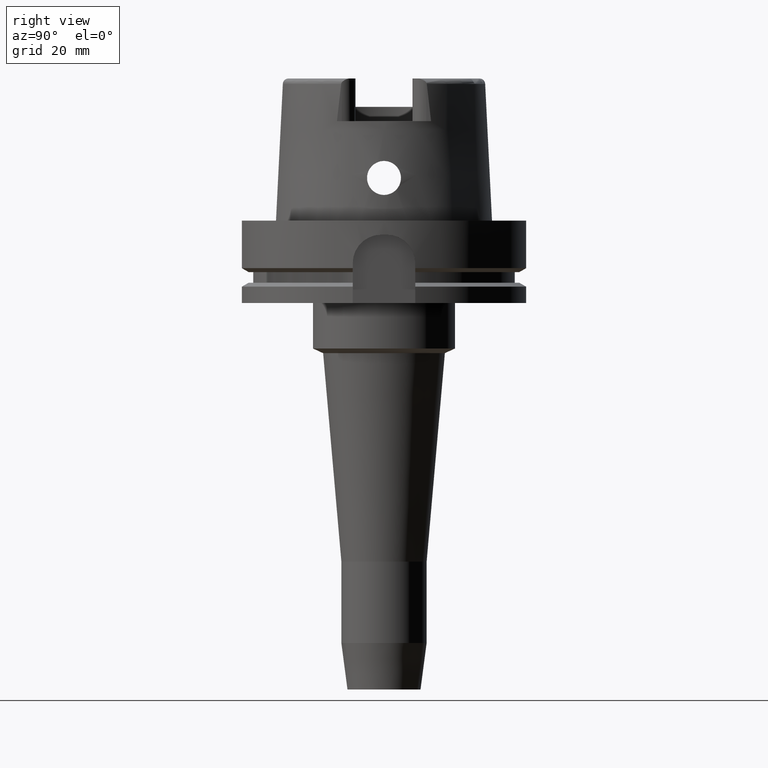
[diagram: clean part render]
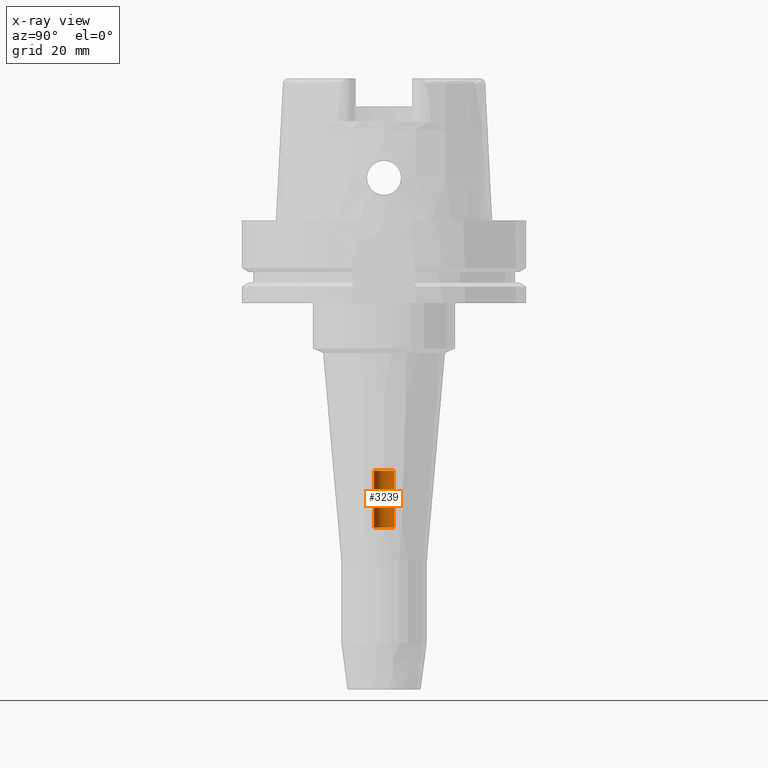
[diagram: x-ray — body ghosted, one internal face saturated and labeled with its STEP entity id]
A machine part, right view, then the same camera in x-ray: the body is ghosted and one INTERNAL B-rep face — a face not visible from any outside direction — is saturated and labeled: STEP entity #3239.
In plain terms, the highlighted cylindrical surface (edge-blend (fillet) strip) has radius 3.5 mm, axis along (0, 0, 1).
Its self-contained STEP definition (entity closure, byte-faithful):
#945=CARTESIAN_POINT('',(0.E0,0.E0,-8.8E1));
#946=DIRECTION('',(0.E0,0.E0,1.E0));
#947=DIRECTION('',(0.E0,1.E0,0.E0));
#948=AXIS2_PLACEMENT_3D('',#945,#946,#947);
#953=DIRECTION('',(0.E0,0.E0,1.E0));
#954=VECTOR('',#953,2.E1);
#955=CARTESIAN_POINT('',(0.E0,3.5E0,-1.08E2));
#956=LINE('',#955,#954);
#960=DIRECTION('',(0.E0,0.E0,1.E0));
#961=VECTOR('',#960,2.E1);
#962=CARTESIAN_POINT('',(0.E0,-3.5E0,-1.08E2));
#963=LINE('',#962,#961);
#983=CARTESIAN_POINT('',(0.E0,0.E0,-1.08E2));
#984=DIRECTION('',(0.E0,0.E0,-1.E0));
#985=DIRECTION('',(0.E0,-1.E0,0.E0));
#986=AXIS2_PLACEMENT_3D('',#983,#984,#985);
#2381=CARTESIAN_POINT('',(0.E0,-3.5E0,-8.8E1));
#2382=CARTESIAN_POINT('',(0.E0,3.5E0,-8.8E1));
#2383=VERTEX_POINT('',#2381);
#2384=VERTEX_POINT('',#2382);
#2385=CARTESIAN_POINT('',(0.E0,3.5E0,-1.08E2));
#2386=VERTEX_POINT('',#2385);
#2387=CARTESIAN_POINT('',(0.E0,-3.5E0,-1.08E2));
#2388=VERTEX_POINT('',#2387);
#3227=CARTESIAN_POINT('',(0.E0,0.E0,-1.7575E2));
#3228=DIRECTION('',(0.E0,0.E0,1.E0));
#3229=DIRECTION('',(0.E0,1.E0,0.E0));
#3230=AXIS2_PLACEMENT_3D('',#3227,#3228,#3229);
#3231=CYLINDRICAL_SURFACE('',#3230,3.5E0);
#3232=ORIENTED_EDGE('',*,*,#3217,.F.);
#3234=ORIENTED_EDGE('',*,*,#3233,.F.);
#3235=ORIENTED_EDGE('',*,*,#3220,.T.);
#3236=ORIENTED_EDGE('',*,*,#3207,.F.);
#3237=EDGE_LOOP('',(#3232,#3234,#3235,#3236));
#3238=FACE_OUTER_BOUND('',#3237,.F.);
#949=CIRCLE('',#948,3.5E0);
#987=CIRCLE('',#986,3.5E0);
#3207=EDGE_CURVE('',#2384,#2383,#949,.T.);
#3217=EDGE_CURVE('',#2386,#2384,#956,.T.);
#3220=EDGE_CURVE('',#2388,#2383,#963,.T.);
#3233=EDGE_CURVE('',#2388,#2386,#987,.T.);
#3239=ADVANCED_FACE('',(#3238),#3231,.F.);